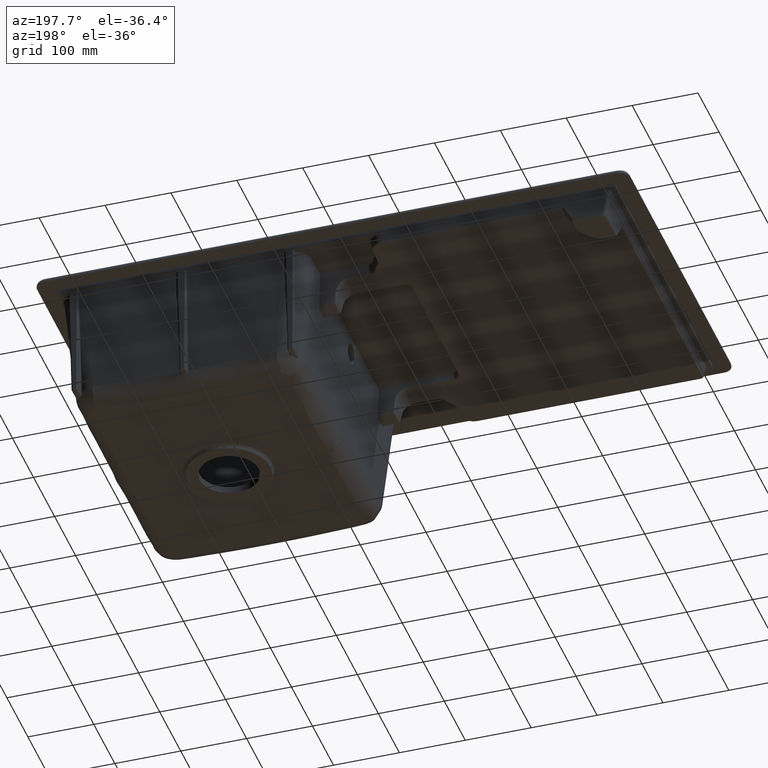
[diagram: clean part render]
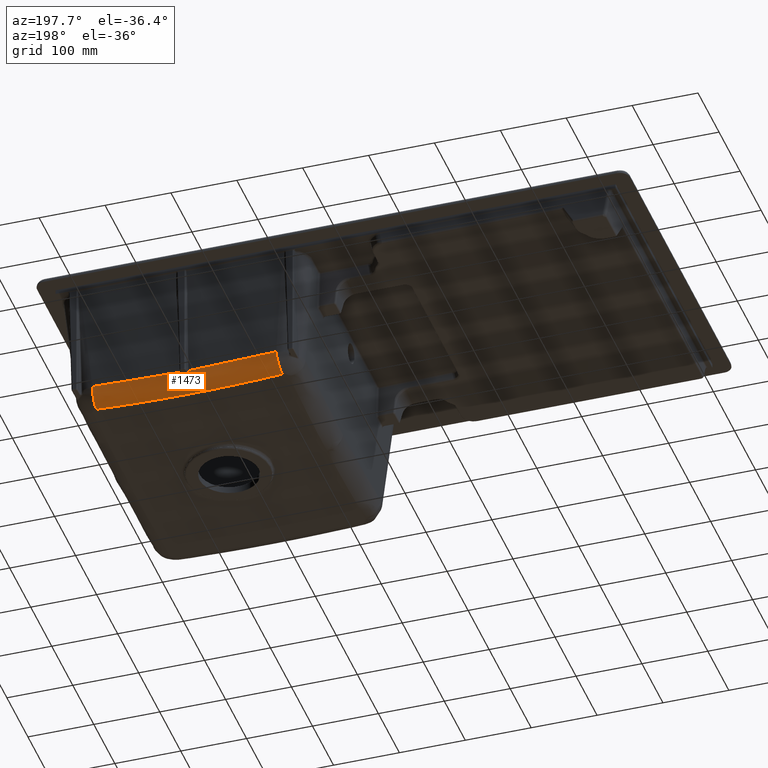
[diagram: same view with one face highlighted and labeled with its STEP entity id]
A machine part, auxiliary view. The second image highlights one B-rep face of the part: STEP entity #1473.
In plain terms, the highlighted face is a freeform B-spline surface patch.
Its self-contained STEP definition (entity closure, byte-faithful):
#248=(
BOUNDED_SURFACE()
B_SPLINE_SURFACE(3,2,((#15061,#15062,#15063),(#15064,#15065,#15066),(#15067,
#15068,#15069),(#15070,#15071,#15072),(#15073,#15074,#15075),(#15076,#15077,
#15078),(#15079,#15080,#15081),(#15082,#15083,#15084),(#15085,#15086,#15087),
(#15088,#15089,#15090),(#15091,#15092,#15093),(#15094,#15095,#15096),(#15097,
#15098,#15099),(#15100,#15101,#15102)),.UNSPECIFIED.,.F.,.F.,.F.)
B_SPLINE_SURFACE_WITH_KNOTS((4,2,2,2,2,2,4),(3,3),(0.,0.25,0.375,0.5,0.625,
0.75,1.),(0.,1.),.UNSPECIFIED.)
GEOMETRIC_REPRESENTATION_ITEM()
RATIONAL_B_SPLINE_SURFACE(((1.,0.76185667574592,1.),(1.,0.761890780237996,
1.),(1.,0.761825591099116,1.),(1.,0.761827163281267,1.),(1.,0.761843251721628,
1.),(1.,0.761797138913715,1.),(1.,0.761724381923987,1.),(1.,0.761723171369284,
1.),(1.,0.76179302251491,1.),(1.,0.761842890141489,1.),(1.,0.761829272102756,
1.),(1.,0.761824175148796,1.),(1.,0.76188411497746,1.),(1.,0.761862351308902,
1.)))
REPRESENTATION_ITEM('')
SURFACE()
);
#494=B_SPLINE_CURVE_WITH_KNOTS('',3,(#13939,#13940,#13941,#13942,#13943,
#13944),.UNSPECIFIED.,.F.,.F.,(4,2,4),(0.,0.5,1.),.UNSPECIFIED.);
#495=B_SPLINE_CURVE_WITH_KNOTS('',3,(#13963,#13964,#13965,#13966),
 .UNSPECIFIED.,.F.,.F.,(4,4),(0.,1.),.UNSPECIFIED.);
#496=B_SPLINE_CURVE_WITH_KNOTS('',3,(#13981,#13982,#13983,#13984),
 .UNSPECIFIED.,.F.,.F.,(4,4),(0.,1.),.UNSPECIFIED.);
#497=B_SPLINE_CURVE_WITH_KNOTS('',3,(#13986,#13987,#13988,#13989),
 .UNSPECIFIED.,.F.,.F.,(4,4),(0.,1.),.UNSPECIFIED.);
#498=B_SPLINE_CURVE_WITH_KNOTS('',3,(#13993,#13994,#13995,#13996),
 .UNSPECIFIED.,.F.,.F.,(4,4),(0.,1.),.UNSPECIFIED.);
#499=B_SPLINE_CURVE_WITH_KNOTS('',3,(#14011,#14012,#14013,#14014,#14015,
#14016),.UNSPECIFIED.,.F.,.F.,(4,2,4),(0.,0.5,1.),.UNSPECIFIED.);
#500=B_SPLINE_CURVE_WITH_KNOTS('',3,(#14035,#14036,#14037,#14038),
 .UNSPECIFIED.,.F.,.F.,(4,4),(0.,1.),.UNSPECIFIED.);
#517=B_SPLINE_CURVE_WITH_KNOTS('',3,(#15007,#15008,#15009,#15010,#15011,
#15012,#15013,#15014,#15015,#15016,#15017,#15018,#15019,#15020,#15021,#15022,
#15023,#15024,#15025,#15026,#15027,#15028,#15029,#15030,#15031,#15032,#15033,
#15034,#15035,#15036,#15037,#15038,#15039,#15040,#15041,#15042,#15043,#15044,
#15045,#15046,#15047,#15048,#15049,#15050,#15051,#15052,#15053,#15054,#15055,
#15056,#15057,#15058,#15059,#15060),.UNSPECIFIED.,.F.,.F.,(4,2,2,2,2,2,
2,2,2,2,2,2,2,2,2,2,2,2,2,2,2,2,2,2,2,2,4),(0.,0.125000000000003,0.187500000000004,
0.218750000000005,0.234375000000006,0.250000000000006,0.312500000000008,
0.343750000000009,0.35937500000001,0.36718750000001,0.37109375000001,0.37500000000001,
0.437500000000013,0.468750000000014,0.500000000000016,0.531250000000017,
0.562500000000019,0.59375000000002,0.609375000000021,0.617187500000021,
0.621093750000022,0.625000000000022,0.687500000000019,0.718750000000018,
0.734375000000017,0.750000000000016,1.),.UNSPECIFIED.);
#1473=ADVANCED_FACE('',(#1821),#248,.T.);
#1821=FACE_OUTER_BOUND('',#2167,.T.);
#2167=EDGE_LOOP('',(#3633,#3634,#3635,#3636,#3637,#3638,#3639,#3640,#3641,
#3642));
#3633=ORIENTED_EDGE('',*,*,#4855,.T.);
#3634=ORIENTED_EDGE('',*,*,#4856,.T.);
#3635=ORIENTED_EDGE('',*,*,#4858,.T.);
#3636=ORIENTED_EDGE('',*,*,#4917,.F.);
#3637=ORIENTED_EDGE('',*,*,#4918,.F.);
#3638=ORIENTED_EDGE('',*,*,#4914,.T.);
#3639=ORIENTED_EDGE('',*,*,#4859,.T.);
#3640=ORIENTED_EDGE('',*,*,#4861,.T.);
#3641=ORIENTED_EDGE('',*,*,#4863,.T.);
#3642=ORIENTED_EDGE('',*,*,#4864,.T.);
#4079=VERTEX_POINT('',#13274);
#4083=VERTEX_POINT('',#13326);
#4125=VERTEX_POINT('',#13844);
#4129=VERTEX_POINT('',#13936);
#4130=VERTEX_POINT('',#13938);
#4131=VERTEX_POINT('',#13980);
#4132=VERTEX_POINT('',#13992);
#4133=VERTEX_POINT('',#14010);
#4158=VERTEX_POINT('',#14960);
#4160=VERTEX_POINT('',#15006);
#4855=EDGE_CURVE('',#4129,#4130,#494,.T.);
#4856=EDGE_CURVE('',#4130,#4079,#495,.T.);
#4858=EDGE_CURVE('',#4079,#4131,#496,.T.);
#4859=EDGE_CURVE('',#4125,#4083,#497,.T.);
#4861=EDGE_CURVE('',#4083,#4132,#498,.T.);
#4863=EDGE_CURVE('',#4132,#4133,#499,.T.);
#4864=EDGE_CURVE('',#4133,#4129,#500,.T.);
#4914=EDGE_CURVE('',#4158,#4125,#5172,.T.);
#4917=EDGE_CURVE('',#4160,#4131,#5174,.T.);
#4918=EDGE_CURVE('',#4158,#4160,#517,.T.);
#5172=CIRCLE('',#5634,26.);
#5174=CIRCLE('',#5636,26.);
#5634=AXIS2_PLACEMENT_3D('',#14959,#6783,#6784);
#5636=AXIS2_PLACEMENT_3D('',#15005,#6787,#6788);
#6783=DIRECTION('',(0.998428412362197,-0.00488438184262243,-0.0558287399277347));
#6784=DIRECTION('',(-0.0558294058979667,0.,-0.998440322421466));
#6787=DIRECTION('',(0.998429603131955,0.00488253253303754,0.055807602222553));
#6788=DIRECTION('',(-0.0558082674366189,0.,0.998441504188264));
#13274=CARTESIAN_POINT('',(241.542630858347,212.924725594392,-184.352480438068));
#13326=CARTESIAN_POINT('',(228.45736825257,212.924742063954,-184.352292190101));
#13844=CARTESIAN_POINT('',(95.6049089728129,213.265712255815,-180.454985063447));
#13936=CARTESIAN_POINT('',(237.527046930398,212.083933442154,-189.020000838145));
#13938=CARTESIAN_POINT('',(241.526908771385,212.814237433326,-185.379821243095));
#13939=CARTESIAN_POINT('',(237.527046936859,212.083961200405,-189.020008503452));
#13940=CARTESIAN_POINT('',(238.549215234705,212.083752186261,-189.019903866292));
#13941=CARTESIAN_POINT('',(239.525660258419,212.186513696652,-188.671494263483));
#13942=CARTESIAN_POINT('',(241.055482351398,212.500030245515,-187.325250535046));
#13943=CARTESIAN_POINT('',(241.511543097782,212.686042791035,-186.384331387676));
#13944=CARTESIAN_POINT('',(241.526908776058,212.814274256801,-185.379825943916));
#13963=CARTESIAN_POINT('',(241.526908776058,212.814274256801,-185.379825943916));
#13964=CARTESIAN_POINT('',(241.532145956286,212.858157901009,-185.036061981456));
#13965=CARTESIAN_POINT('',(241.537387308078,212.894864279503,-184.693796829076));
#13966=CARTESIAN_POINT('',(241.542634175233,212.924643866856,-184.353414588074));
#13980=CARTESIAN_POINT('',(374.39510376952,213.265717239195,-180.454928102314));
#13981=CARTESIAN_POINT('',(241.542627541461,212.924807321927,-184.351546288062));
#13982=CARTESIAN_POINT('',(285.839404164503,212.938939053745,-184.190019854248));
#13983=CARTESIAN_POINT('',(330.149549384421,213.04935091711,-182.928006481146));
#13984=CARTESIAN_POINT('',(374.395101315718,213.265721050837,-180.454884535889));
#13986=CARTESIAN_POINT('',(95.604908387752,213.265711347367,-180.454995447057));
#13987=CARTESIAN_POINT('',(139.866410404131,213.049180974134,-182.929948938251));
#13988=CARTESIAN_POINT('',(184.151258098111,212.938698637156,-184.192767828438));
#13989=CARTESIAN_POINT('',(228.457371250371,212.924814913819,-184.351459512342));
#13992=CARTESIAN_POINT('',(228.473086115247,212.814230738949,-185.379814316025));
#13993=CARTESIAN_POINT('',(228.457365254766,212.92466921409,-184.353124867861));
#13994=CARTESIAN_POINT('',(228.462610734051,212.894881474999,-184.693600283666));
#13995=CARTESIAN_POINT('',(228.467850565256,212.858163159482,-185.035959637901));
#13996=CARTESIAN_POINT('',(228.473086111036,212.814263591286,-185.379818510261));
#14010=CARTESIAN_POINT('',(232.472966877623,212.083911435601,-189.019990757494));
#14011=CARTESIAN_POINT('',(228.473086111036,212.814263591286,-185.379818510261));
#14012=CARTESIAN_POINT('',(228.488430641099,212.686156030358,-186.38326629275));
#14013=CARTESIAN_POINT('',(228.968265567007,212.495250610192,-187.3460251541));
#14014=CARTESIAN_POINT('',(230.458163665273,212.189647459996,-188.657474113866));
#14015=CARTESIAN_POINT('',(231.45020396405,212.083721433727,-189.019890132293));
#14016=CARTESIAN_POINT('',(232.472966871025,212.083938736071,-189.019998296472));
#14035=CARTESIAN_POINT('',(232.472966871025,212.083938736071,-189.019998296472));
#14036=CARTESIAN_POINT('',(234.161123745077,212.08429741201,-189.020176830618));
#14037=CARTESIAN_POINT('',(235.846226280055,212.084304896537,-189.020180565431));
#14038=CARTESIAN_POINT('',(237.527046936859,212.083961200405,-189.020008503452));
#14959=CARTESIAN_POINT('',(95.6049083877521,187.364649196982,-178.188946135618));
#14960=CARTESIAN_POINT('',(94.1667920777072,189.297835291073,-204.077021053053));
#15005=CARTESIAN_POINT('',(374.395101315719,187.364658900452,-178.18883522445));
#15006=CARTESIAN_POINT('',(375.832649062098,189.298269848192,-204.076547248723));
#15007=CARTESIAN_POINT('',(94.1667944058129,189.297832161518,-204.076979117226));
#15008=CARTESIAN_POINT('',(106.542480925494,189.239721796227,-204.76836328011));
#15009=CARTESIAN_POINT('',(118.517582931733,189.185492988282,-205.346528670114));
#15010=CARTESIAN_POINT('',(136.039237903342,189.119378268247,-206.074400928658));
#15011=CARTESIAN_POINT('',(141.807836303941,189.100204440682,-206.293712831374));
#15012=CARTESIAN_POINT('',(150.384084470673,189.07487140883,-206.59077134707));
#15013=CARTESIAN_POINT('',(153.230126056395,189.066960465486,-206.684467424343));
#15014=CARTESIAN_POINT('',(157.484648089347,189.055330803,-206.817361810875));
#15015=CARTESIAN_POINT('',(158.900560090222,189.051529889372,-206.860384611612));
#15016=CARTESIAN_POINT('',(161.728984086586,189.044017175829,-206.943931484202));
#15017=CARTESIAN_POINT('',(163.092486440144,189.040429380716,-206.983091481067));
#15018=CARTESIAN_POINT('',(170.393755406492,189.021036947093,-207.18640887958));
#15019=CARTESIAN_POINT('',(176.214957164831,189.01068104693,-207.327749732552));
#15020=CARTESIAN_POINT('',(184.983532325338,188.992037943988,-207.510096989482));
#15021=CARTESIAN_POINT('',(187.913554356287,188.985829018511,-207.565929421571));
#15022=CARTESIAN_POINT('',(192.333505265426,188.977301596126,-207.64248637633));
#15023=CARTESIAN_POINT('',(193.810986927863,188.974584920202,-207.666806354117));
#15024=CARTESIAN_POINT('',(196.035340512037,188.970746210744,-207.701513446705));
#15025=CARTESIAN_POINT('',(196.778147716612,188.969505096279,-207.712786973066));
#15026=CARTESIAN_POINT('',(197.894635626906,188.967706301885,-207.729256994739));
#15027=CARTESIAN_POINT('',(198.267177351253,188.967126712757,-207.734673639471));
#15028=CARTESIAN_POINT('',(199.01295232017,188.966003822931,-207.745360685159));
#15029=CARTESIAN_POINT('',(199.357551263983,188.965500930297,-207.750232668126));
#15030=CARTESIAN_POINT('',(206.194604784904,188.955852674348,-207.845363504589));
#15031=CARTESIAN_POINT('',(212.43665726335,188.923241668838,-207.911802905378));
#15032=CARTESIAN_POINT('',(221.310595803312,188.917894303803,-207.978241347906));
#15033=CARTESIAN_POINT('',(224.193589477811,188.92143000925,-207.994839356599));
#15034=CARTESIAN_POINT('',(229.753121851635,188.934502800766,-208.017049978914));
#15035=CARTESIAN_POINT('',(232.387450144629,188.941499441422,-208.02266342078));
#15036=CARTESIAN_POINT('',(237.564422434722,188.941309689538,-208.0228946018));
#15037=CARTESIAN_POINT('',(240.201415134659,188.9330454977,-208.017464312948));
#15038=CARTESIAN_POINT('',(245.740419940343,188.913855174778,-207.995527955605));
#15039=CARTESIAN_POINT('',(248.62255177751,188.909030752355,-207.979024729088));
#15040=CARTESIAN_POINT('',(254.539485012775,188.916355431921,-207.934830695703));
#15041=CARTESIAN_POINT('',(257.580301110642,188.927120289328,-207.907140333978));
#15042=CARTESIAN_POINT('',(262.243561153727,188.943442303525,-207.857067081371));
#15043=CARTESIAN_POINT('',(263.814856431454,188.94896160042,-207.838952330428));
#15044=CARTESIAN_POINT('',(266.193689580157,188.956058619254,-207.809620422519));
#15045=CARTESIAN_POINT('',(266.990278161453,188.958226190137,-207.799483117504));
#15046=CARTESIAN_POINT('',(268.190158959781,188.96100775188,-207.783733772036));
#15047=CARTESIAN_POINT('',(268.590951915988,188.961856568787,-207.77839342313));
#15048=CARTESIAN_POINT('',(269.39412144615,188.963367828042,-207.767530997983));
#15049=CARTESIAN_POINT('',(269.826425269578,188.964071409388,-207.761592206093));
#15050=CARTESIAN_POINT('',(276.170807685363,188.972792582553,-207.673251186798));
#15051=CARTESIAN_POINT('',(282.051459900511,188.984949888322,-207.571486591338));
#15052=CARTESIAN_POINT('',(290.828121545082,189.004056869149,-207.389189449144));
#15053=CARTESIAN_POINT('',(293.746968580249,189.010125531547,-207.323475801144));
#15054=CARTESIAN_POINT('',(298.124455800764,189.019265278151,-207.217213568442));
#15055=CARTESIAN_POINT('',(299.58342658256,189.0223826286,-207.180510505793));
#15056=CARTESIAN_POINT('',(302.502269359368,189.029027713651,-207.104490192454));
#15057=CARTESIAN_POINT('',(304.010653427444,189.032682796591,-207.063823090509));
#15058=CARTESIAN_POINT('',(328.021912282002,189.095800283496,-206.395708916173));
#15059=CARTESIAN_POINT('',(351.057161883357,189.181816896672,-205.460060520271));
#15060=CARTESIAN_POINT('',(375.832626772251,189.29823987482,-204.076145684341));
#15061=CARTESIAN_POINT('',(95.6049083877521,213.265711347367,-180.454995447057));
#15062=CARTESIAN_POINT('',(94.3660599874758,211.342099229858,-202.441982560418));
#15063=CARTESIAN_POINT('',(94.1667897496014,189.297838420628,-204.07706298888));
#15064=CARTESIAN_POINT('',(118.823654702905,213.152123611219,-181.75330921218));
#15065=CARTESIAN_POINT('',(117.790270509767,211.227858626361,-203.747758651351));
#15066=CARTESIAN_POINT('',(117.625081526351,189.187750983804,-205.388422430831));
#15067=CARTESIAN_POINT('',(142.048647490083,213.066835286862,-182.728159220396));
#15068=CARTESIAN_POINT('',(141.221302282537,211.141270939048,-204.737460434497));
#15069=CARTESIAN_POINT('',(141.08833795894,189.094424912592,-206.373831624157));
#15070=CARTESIAN_POINT('',(176.895609504431,212.981936600391,-183.698555647192));
#15071=CARTESIAN_POINT('',(176.382626428015,211.055615841792,-205.716502666752));
#15072=CARTESIAN_POINT('',(176.300167816871,189.008763145726,-207.354379299344));
#15073=CARTESIAN_POINT('',(188.512882165363,212.960983741667,-183.938047918307));
#15074=CARTESIAN_POINT('',(188.109009184917,211.034566357189,-205.957099378355));
#15075=CARTESIAN_POINT('',(188.043657453037,188.9888740154,-207.596338337516));
#15076=CARTESIAN_POINT('',(211.750437973905,212.932741878499,-184.26085389144));
#15077=CARTESIAN_POINT('',(211.538497742413,211.005813259928,-206.285748786875));
#15078=CARTESIAN_POINT('',(211.504040576135,188.956669892996,-207.922514100238));
#15079=CARTESIAN_POINT('',(223.370349620492,212.923766735759,-184.363440242389));
#15080=CARTESIAN_POINT('',(223.212595089077,210.996329786478,-206.394145384276));
#15081=CARTESIAN_POINT('',(223.187273107379,188.941789483264,-208.026463384248));
#15082=CARTESIAN_POINT('',(246.614112802522,212.923698688979,-184.364218020646));
#15083=CARTESIAN_POINT('',(246.770400391918,210.996253523035,-206.395017076757));
#15084=CARTESIAN_POINT('',(246.79546528546,188.941623476688,-208.027260527406));
#15085=CARTESIAN_POINT('',(258.237983431354,212.932692417649,-184.261419231544));
#15086=CARTESIAN_POINT('',(258.451035310263,211.005740038427,-206.286585721393));
#15087=CARTESIAN_POINT('',(258.485701620017,188.956292173478,-207.923089505155));
#15088=CARTESIAN_POINT('',(281.488003272602,212.961021834971,-183.937612509847));
#15089=CARTESIAN_POINT('',(281.892290280651,211.034603070736,-205.956679731666));
#15090=CARTESIAN_POINT('',(281.957741358462,188.988884126624,-207.595893994714));
#15091=CARTESIAN_POINT('',(293.113569386302,212.981956436317,-183.698328921532));
#15092=CARTESIAN_POINT('',(293.626255107489,211.055647717501,-205.716138345398));
#15093=CARTESIAN_POINT('',(293.708648594469,189.008950973747,-207.35414948597));
#15094=CARTESIAN_POINT('',(327.971212866787,213.066865575432,-182.727813020456));
#15095=CARTESIAN_POINT('',(328.798916347863,211.141293465363,-204.737202918223));
#15096=CARTESIAN_POINT('',(328.931852235,189.094342540288,-206.373485916213));
#15097=CARTESIAN_POINT('',(351.19184153653,213.152252188859,-181.751839563036));
#15098=CARTESIAN_POINT('',(352.225851475365,211.228013344025,-203.745990218544));
#15099=CARTESIAN_POINT('',(352.391598118304,189.188186779725,-205.386858995058));
#15100=CARTESIAN_POINT('',(374.395101315719,213.265721050837,-180.454884535889));
#15101=CARTESIAN_POINT('',(375.633458679359,211.34214079331,-202.441507487977));
#15102=CARTESIAN_POINT('',(375.832671351945,189.298299821564,-204.076948813106));